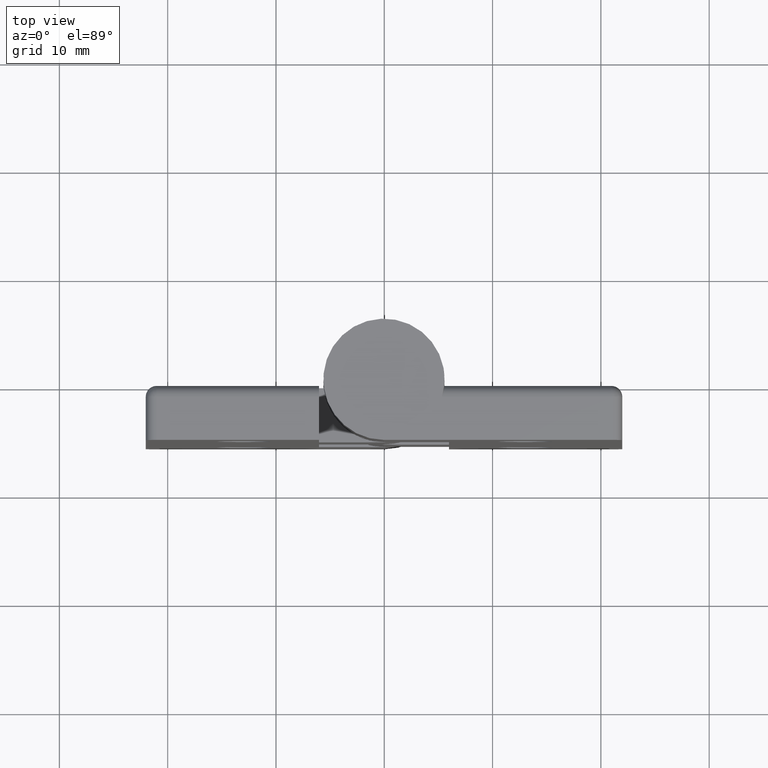
[diagram: clean part render]
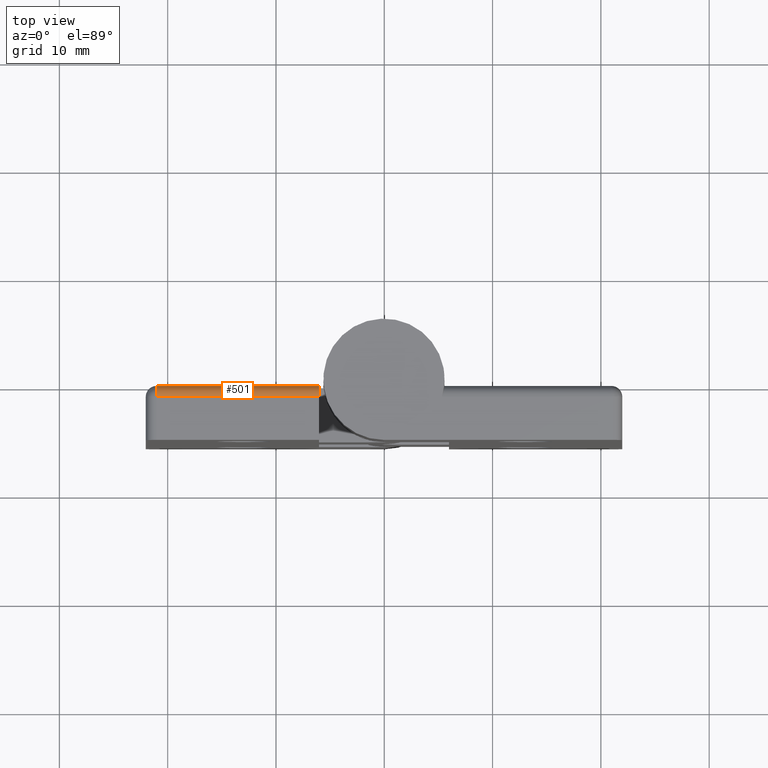
[diagram: same view with one face highlighted and labeled with its STEP entity id]
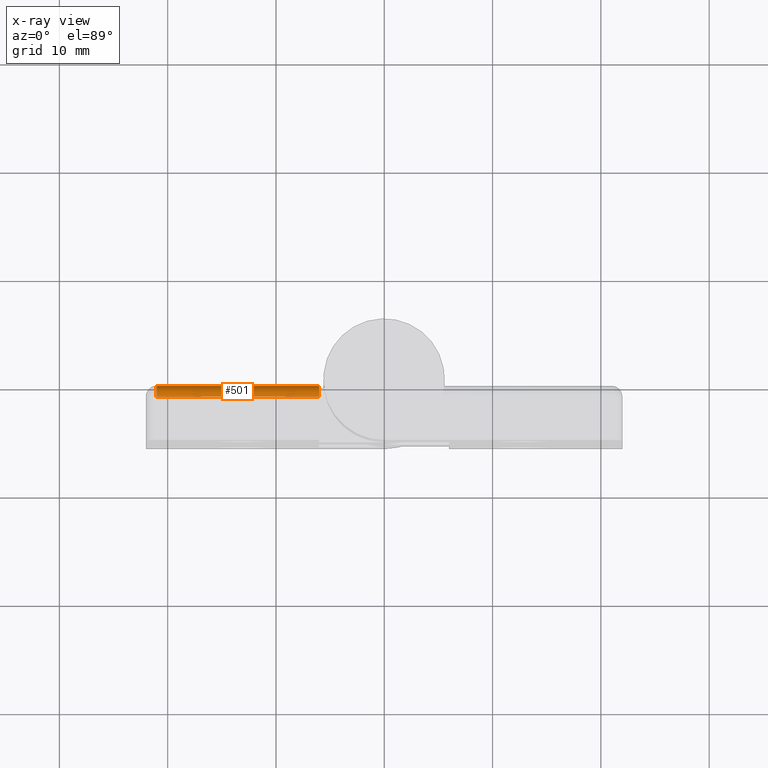
[diagram: x-ray of the same camera — body ghosted, the highlighted face saturated]
A machine part, top view. The second image highlights one B-rep face of the part: STEP entity #501.
The next image is the same camera in x-ray: the body ghosted, the highlighted face saturated — about 0% of this face is hidden behind the body in this view.
In plain terms, the highlighted cylindrical surface (edge-blend (fillet) strip) has radius 1 mm, axis along (1, 0, 0).
Its self-contained STEP definition (entity closure, byte-faithful):
#85=FACE_OUTER_BOUND('',#118,.T.);
#118=EDGE_LOOP('',(#365,#366,#367,#368));
#169=LINE('',#790,#200);
#170=LINE('',#793,#201);
#200=VECTOR('',#615,15.);
#201=VECTOR('',#618,15.);
#231=CIRCLE('',#539,1.);
#232=CIRCLE('',#540,1.);
#260=VERTEX_POINT('',#786);
#261=VERTEX_POINT('',#787);
#262=VERTEX_POINT('',#789);
#263=VERTEX_POINT('',#791);
#304=EDGE_CURVE('',#260,#261,#231,.T.);
#305=EDGE_CURVE('',#261,#262,#169,.T.);
#306=EDGE_CURVE('',#262,#263,#232,.T.);
#307=EDGE_CURVE('',#263,#260,#170,.T.);
#365=ORIENTED_EDGE('',*,*,#304,.T.);
#366=ORIENTED_EDGE('',*,*,#305,.T.);
#367=ORIENTED_EDGE('',*,*,#306,.T.);
#368=ORIENTED_EDGE('',*,*,#307,.T.);
#487=CYLINDRICAL_SURFACE('',#538,1.);
#501=ADVANCED_FACE('',(#85),#487,.T.);
#538=AXIS2_PLACEMENT_3D('',#785,#611,#612);
#539=AXIS2_PLACEMENT_3D('',#788,#613,#614);
#540=AXIS2_PLACEMENT_3D('',#792,#616,#617);
#611=DIRECTION('center_axis',(1.,1.26161707343768E-16,0.));
#612=DIRECTION('ref_axis',(0.,0.707106781186548,0.707106781186547));
#613=DIRECTION('center_axis',(-1.,-1.11022302462516E-16,3.41607084500048E-16));
#614=DIRECTION('ref_axis',(0.,0.707106781186548,0.707106781186547));
#615=DIRECTION('',(-1.,-1.26161707343768E-16,0.));
#616=DIRECTION('center_axis',(1.,0.,0.));
#617=DIRECTION('ref_axis',(0.,1.,0.));
#618=DIRECTION('',(1.,1.26161707343768E-16,0.));
#785=CARTESIAN_POINT('Origin',(-11.,4.,-1.));
#786=CARTESIAN_POINT('',(-6.,4.,0.));
#787=CARTESIAN_POINT('',(-6.,5.,-1.));
#788=CARTESIAN_POINT('Origin',(-6.,4.,-1.));
#789=CARTESIAN_POINT('',(-21.,5.,-1.));
#790=CARTESIAN_POINT('',(-11.,5.,-1.));
#791=CARTESIAN_POINT('',(-21.,4.,0.));
#792=CARTESIAN_POINT('Origin',(-21.,4.,-1.));
#793=CARTESIAN_POINT('',(-11.,4.,0.));